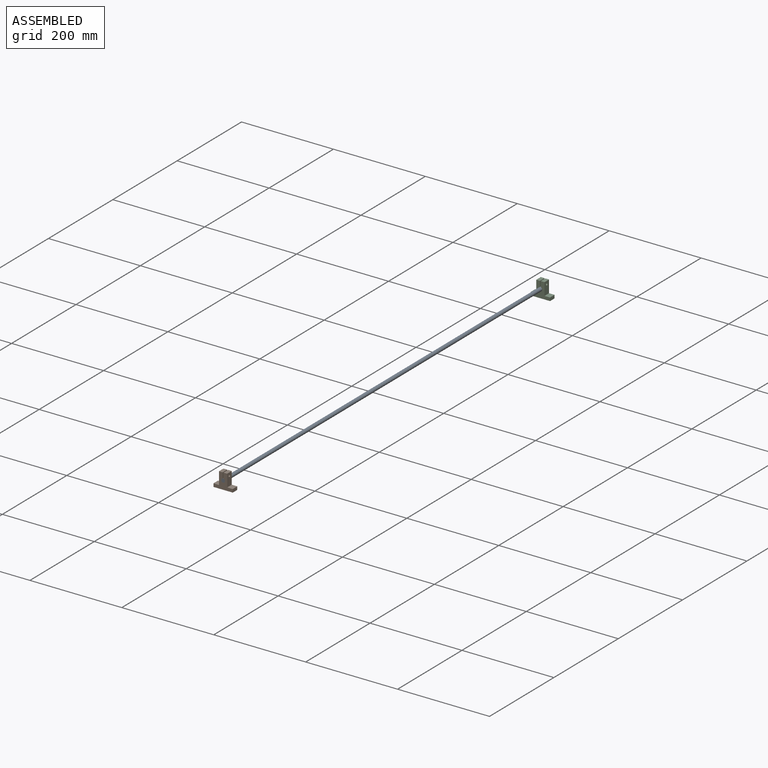
[diagram: assembled view]
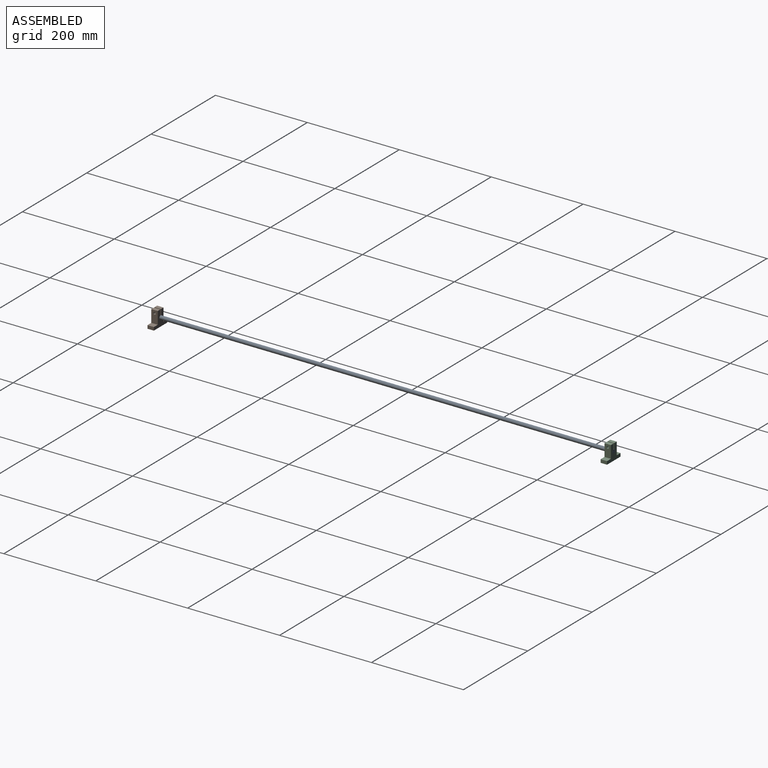
[diagram: assembled view, second angle]
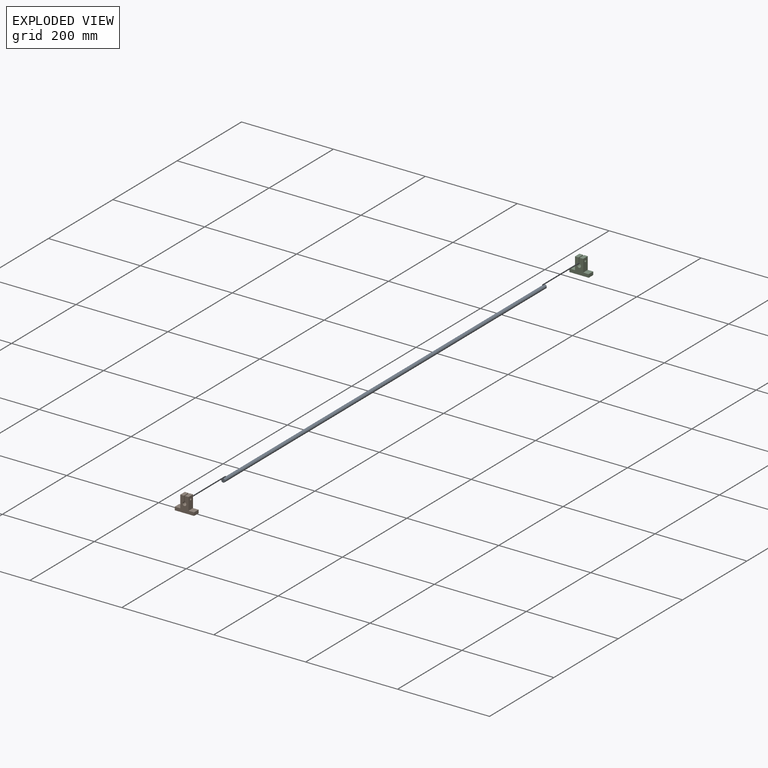
[diagram: exploded view]
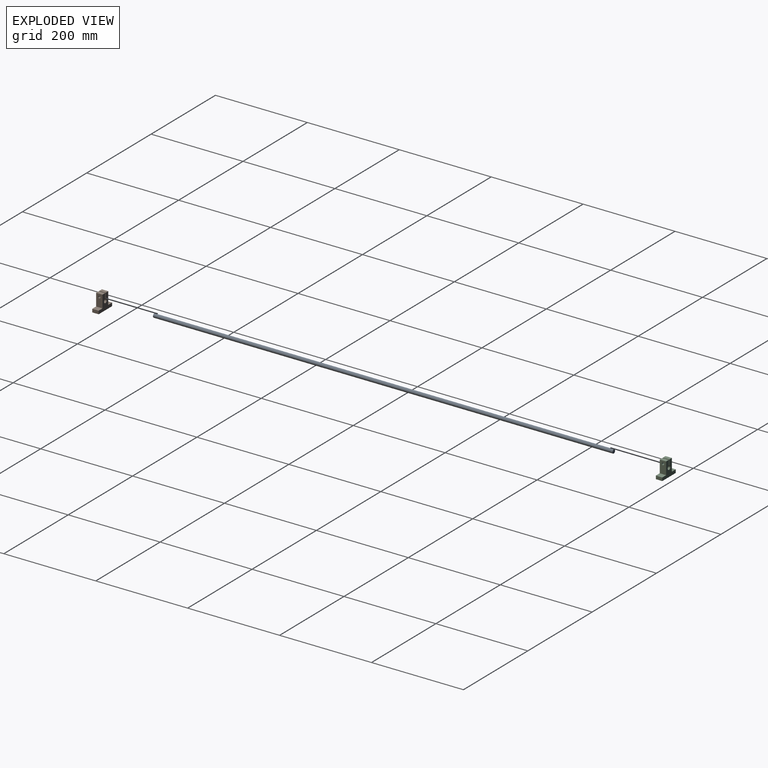
[diagram: exploded view, second angle]
ASSEMBLY  parts=3 mates=2
PART A: 3 faces, bbox 8x1000x8 mm
  f0: cylinder r=4mm len=1000mm, axis (0,-1,0), area 25132.7mm2, adj f1,f2
  f1: plane 8x8mm, normal (0,1,0), area 50.3mm2, adj f0
  f2: plane 8x8mm, normal (0,-1,0), area 50.3mm2, adj f0
PART B: 16 faces, bbox 42x14x34 mm
  f0: plane 42x14mm, normal (0,0,-1), area 588mm2, adj f1,f11,f12,f13
  f1: plane 14x7mm, normal (1,0,0), area 98mm2, adj f0,f2,f12,f13
  f2: plane 14x12mm, normal (0,0,1), area 168mm2, adj f1,f3,f12,f13
  f3: plane 27x14mm, normal (1,0,0), area 358.4mm2, adj f2,f4,f12,f13,f15
  f4: plane 14x8mm, normal (0,0,1), area 112mm2, adj f3,f5,f12,f13
  f5: plane 14x12.13mm, normal (-1,0,0), area 150.1mm2, adj f4,f6,f12,f13,f15
  f6: cylinder r=4mm len=14mm, axis (0,-1,0), area 323.6mm2, adj f5,f7,f12,f13
  f7: plane 14x12.13mm, normal (1,0,0), area 150.1mm2, adj f6,f8,f12,f13,f14
  f8: plane 14x8mm, normal (0,0,1), area 112mm2, adj f7,f9,f12,f13
  f9: plane 27x14mm, normal (-1,0,0), area 358.4mm2, adj f8,f10,f12,f13,f14
  f10: plane 14x12mm, normal (0,0,1), area 168mm2, adj f9,f11,f12,f13
  f11: plane 14x7mm, normal (-1,0,0), area 98mm2, adj f0,f10,f12,f13
  f12: plane 42x34mm, normal (0,1,0), area 705.7mm2, adj f0,f1,f2,f3,f4,f5,f6,f7
  f13: plane 42x34mm, normal (0,-1,0), area 705.7mm2, adj f0,f1,f2,f3,f4,f5,f6,f7
  f14: cylinder r=2.5mm len=8mm, axis (1,0,0), area 125.7mm2, adj f7,f9
  f15: cylinder r=2.5mm len=8mm, axis (1,0,0), area 125.7mm2, adj f3,f5
PART C: same geometry as B
PLACE A t=(81.43,-315.93,205.58)mm fixed
PLACE B t=(81.43,-315.93,187.58)mm
PLACE C t=(81.43,670.07,187.58)mm fixed
MATE fastened A.f0 <-> C.f6  axis (0,1,0) through (81.43,684.07,205.58)mm
MATE fastened B.f6 <-> A.f0  axis (0,-1,0) through (81.43,-315.93,205.58)mm
